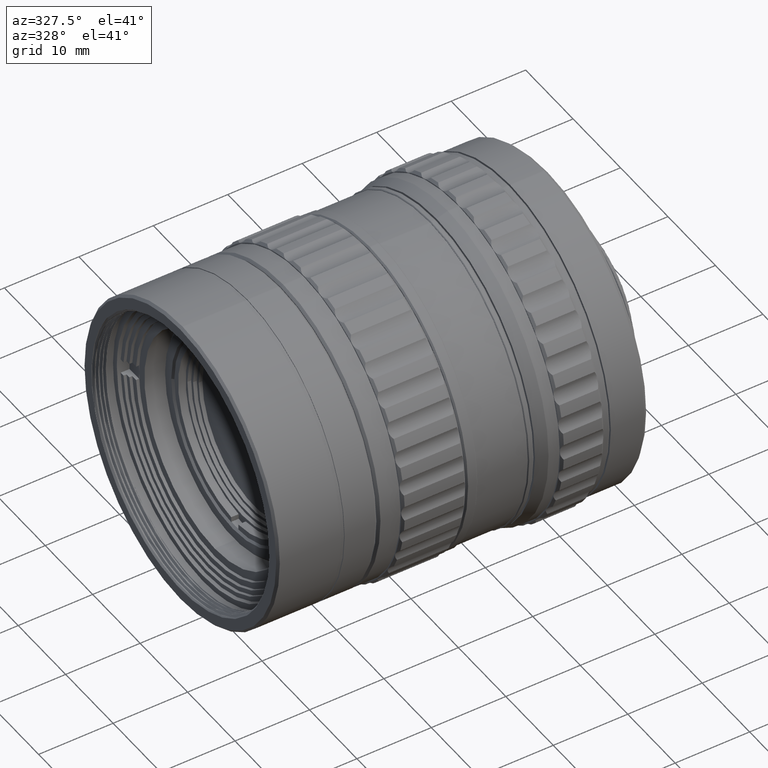
[diagram: clean part render]
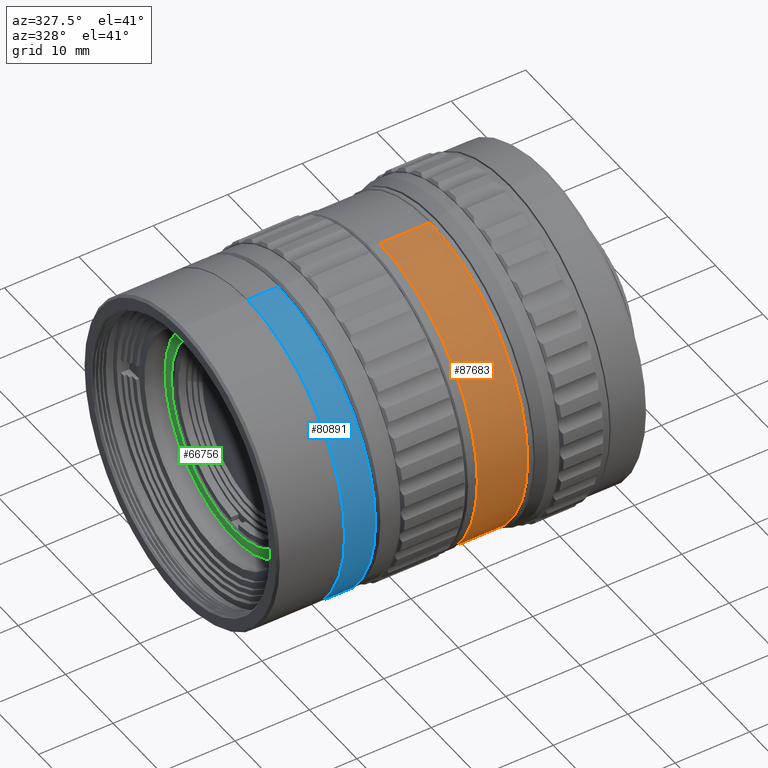
[diagram: same view with three faces highlighted in distinct colors, each labeled with its STEP entity id]
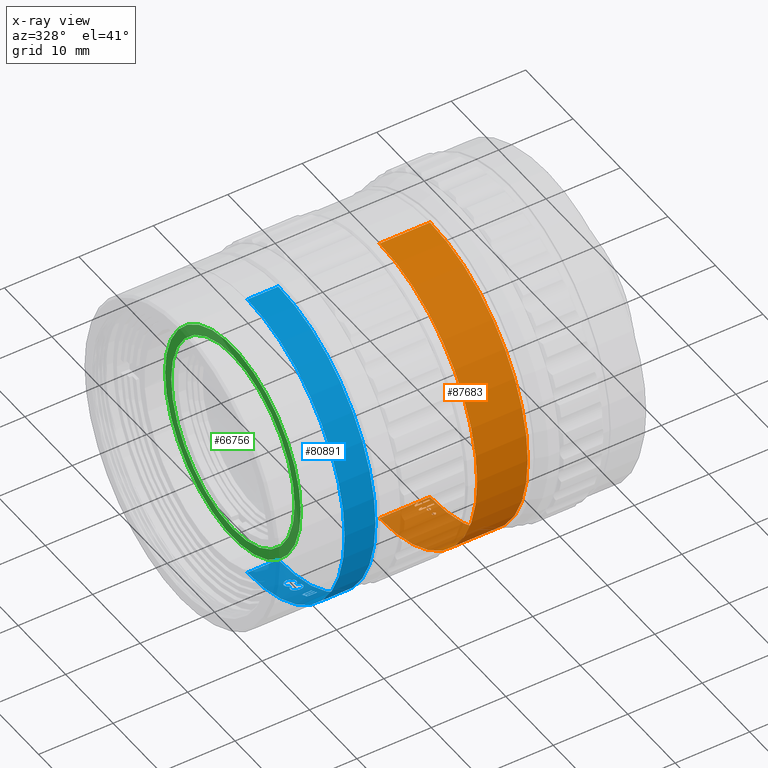
[diagram: x-ray of the same camera — body ghosted, the three highlighted faces saturated]
A machine part, auxiliary view with three faces highlighted in distinct colors.
The next image is the same camera in x-ray (body ghosted, the three faces saturated) — at least one of them is partly hidden behind the body in this view.
Their STEP definitions:

[orange] entity #87683 — the highlighted cylindrical surface (partial cylindrical patch) has radius 20.6 mm, axis along (1, 0, 0).
#61 = ORIENTED_EDGE ( 'NONE', *, *, #31539, .F. ) ;
#879 = CARTESIAN_POINT ( 'NONE',  ( 27.38000000000014467, -2.867230607665004261, -20.39948500924690222 ) ) ;
#974 = CARTESIAN_POINT ( 'NONE',  ( 26.97042549133185929, -1.196016050088671623, -20.56525092499361662 ) ) ;
#978 = EDGE_LOOP ( 'NONE', ( #81887, #77098 ) ) ;
#1744 = VECTOR ( 'NONE', #4397, 1000.000000000000000 ) ;
#2208 = DIRECTION ( 'NONE',  ( 0.000000000000000000, 0.000000000000000000, -1.000000000000000000 ) ) ;
#2530 = DIRECTION ( 'NONE',  ( -1.000000000000000000, -0.000000000000000000, -0.000000000000000000 ) ) ;
#2902 = CARTESIAN_POINT ( 'NONE',  ( 27.87999999999995282, -2.867230607664791986, -20.39948500924693775 ) ) ;
#2913 = FACE_BOUND ( 'NONE', #93346, .T. ) ;
#2920 = LINE ( 'NONE', #44195, #71099 ) ;
#4202 = CARTESIAN_POINT ( 'NONE',  ( 27.75964480788636735, -2.013433737687979175, -20.50141693491469397 ) ) ;
#4397 = DIRECTION ( 'NONE',  ( -1.000000000000000000, -0.000000000000000000, -0.000000000000000000 ) ) ;
#4553 = ORIENTED_EDGE ( 'NONE', *, *, #42507, .F. ) ;
#4742 = CARTESIAN_POINT ( 'NONE',  ( 27.88000000000289802, -1.730068221876666090, -20.52732676442056459 ) ) ;
#4762 = EDGE_CURVE ( 'NONE', #100325, #97927, #74004, .T. ) ;
#4770 = LINE ( 'NONE', #37441, #21481 ) ;
#5277 = CARTESIAN_POINT ( 'NONE',  ( 27.40722004664252509, -1.923569972659979088, -20.51004511358997462 ) ) ;
#5859 = CARTESIAN_POINT ( 'NONE',  ( 26.62999999999991374, -1.196016050087959970, -20.56525092499365925 ) ) ;
#6060 = EDGE_LOOP ( 'NONE', ( #47538, #8512 ) ) ;
#7034 = VERTEX_POINT ( 'NONE', #34359 ) ;
#7618 = DIRECTION ( 'NONE',  ( 1.000000000000000000, 0.000000000000000000, 0.000000000000000000 ) ) ;
#8103 = CIRCLE ( 'NONE', #93800, 20.60000000000049170 ) ;
#8201 = VERTEX_POINT ( 'NONE', #63039 ) ;
#8486 = DIRECTION ( 'NONE',  ( 0.000000000000000000, 0.000000000000000000, -1.000000000000000000 ) ) ;
#8512 = ORIENTED_EDGE ( 'NONE', *, *, #76299, .F. ) ;
#8932 = CARTESIAN_POINT ( 'NONE',  ( 27.56559601953591709, -3.109919967249379358, -20.36389937609238032 ) ) ;
#9267 = CARTESIAN_POINT ( 'NONE',  ( 28.62999999999967571, -0.3138197288554005482, -20.59760950153685855 ) ) ;
#10170 = CARTESIAN_POINT ( 'NONE',  ( 27.26829791545866044, -1.012352507113146283, -20.57510977859807255 ) ) ;
#10505 = VECTOR ( 'NONE', #69737, 1000.000000000000000 ) ;
#10916 = AXIS2_PLACEMENT_3D ( 'NONE', #75079, #7618, #42288 ) ;
#10945 = ORIENTED_EDGE ( 'NONE', *, *, #86848, .F. ) ;
#10959 = CARTESIAN_POINT ( 'NONE',  ( 27.37999999999936307, -2.802435687914634155, -20.40859219881786757 ) ) ;
#11913 = LINE ( 'NONE', #77937, #1744 ) ;
#12008 = EDGE_CURVE ( 'NONE', #70984, #100325, #2920, .T. ) ;
#13644 = VERTEX_POINT ( 'NONE', #54316 ) ;
#13814 = CARTESIAN_POINT ( 'NONE',  ( 25.53000000000000114, -0.4977120028756987780, -20.59398656798177640 ) ) ;
#14349 = CARTESIAN_POINT ( 'NONE',  ( 27.87999999999873069, -2.932025527407225773, -20.39037781967707019 ) ) ;
#14902 = LINE ( 'NONE', #64267, #75177 ) ;
#15770 = VECTOR ( 'NONE', #103962, 1000.000000000000000 ) ;
#19490 = CARTESIAN_POINT ( 'NONE',  ( 26.62999999999991374, -1.196016050087959970, -20.56525092499365925 ) ) ;
#19544 = FACE_OUTER_BOUND ( 'NONE', #72751, .T. ) ;
#19732 = VERTEX_POINT ( 'NONE', #89055 ) ;
#19829 = EDGE_CURVE ( 'NONE', #74398, #67321, #59873, .T. ) ;
#20380 = VERTEX_POINT ( 'NONE', #33843 ) ;
#21481 = VECTOR ( 'NONE', #69165, 1000.000000000000000 ) ;
#21641 = CARTESIAN_POINT ( 'NONE',  ( 27.88000000000183221, -1.795242136339606054, -20.52162531750180463 ) ) ;
#21759 = CARTESIAN_POINT ( 'NONE',  ( 26.63000000000011269, -0.4977120028706093491, -20.59398656798190075 ) ) ;
#21879 = CARTESIAN_POINT ( 'NONE',  ( 27.37999999999827949, -1.795242136339684436, -20.52162531750180463 ) ) ;
#22600 = VERTEX_POINT ( 'NONE', #31560 ) ;
#23768 = CARTESIAN_POINT ( 'NONE',  ( 26.92787230491757811, -0.1299024374312810481, -20.59959041720902562 ) ) ;
#24789 = B_SPLINE_CURVE_WITH_KNOTS ( 'NONE', 3,
 ( #76454, #10959, #43654, #57817, #52263, #40626, #99123, #32548, #73423, #2902 ),
 .UNSPECIFIED., .F., .F.,
 ( 4, 2, 2, 2, 4 ),
 ( 1.835032903172888128E-15, 0.0001935085962069073079, 0.0003870171924119795493, 0.0005805257886170517908, 0.0007740343848221240865 ),
 .UNSPECIFIED. ) ;
#27359 = CARTESIAN_POINT ( 'NONE',  ( 27.06971629937988411, -1.134809946718591256, -20.56881049653792459 ) ) ;
#27917 = DIRECTION ( 'NONE',  ( -1.000000000000000000, -0.000000000000000000, -0.000000000000000000 ) ) ;
#28941 = CARTESIAN_POINT ( 'NONE',  ( 27.16900710742087455, -1.073587952332154982, -20.57209682473495960 ) ) ;
#29095 = CARTESIAN_POINT ( 'NONE',  ( 26.82858153661478795, -1.073587952332154982, -20.57209682473495960 ) ) ;
#29995 = CIRCLE ( 'NONE', #74561, 20.60000000000049170 ) ;
#30276 = ORIENTED_EDGE ( 'NONE', *, *, #93043, .F. ) ;
#30425 = B_SPLINE_CURVE_WITH_KNOTS ( 'NONE', 3,
 ( #46021, #78272, #78798, #4202, #71282, #86841, #63229, #5277, #95943, #102378 ),
 .UNSPECIFIED., .F., .F.,
 ( 4, 2, 2, 2, 4 ),
 ( 1.909695979144924264E-15, 0.0001935085963343635403, 0.0003870171926668174210, 0.0005805257889992713289, 0.0007740343853317256705 ),
 .UNSPECIFIED. ) ;
#30434 = CARTESIAN_POINT ( 'NONE',  ( 27.75880520567685394, -1.576096809920223718, -20.53966871317484433 ) ) ;
#31539 = EDGE_CURVE ( 'NONE', #41095, #40223, #78800, .T. ) ;
#31560 = CARTESIAN_POINT ( 'NONE',  ( 28.92999999999996774, 0.000000000000000000, -20.60000000000049170 ) ) ;
#32548 = CARTESIAN_POINT ( 'NONE',  ( 27.85277995325906630, -2.739586912311844813, -20.41706971019821637 ) ) ;
#33597 = EDGE_CURVE ( 'NONE', #97927, #64964, #53615, .T. ) ;
#33843 = CARTESIAN_POINT ( 'NONE',  ( 26.63000000000011269, -1.379584247957886145, -20.55375263310344636 ) ) ;
#34359 = CARTESIAN_POINT ( 'NONE',  ( 27.38000000000014467, -2.867230607665004261, -20.39948500924690222 ) ) ;
#35037 = EDGE_CURVE ( 'NONE', #13644, #36921, #14902, .T. ) ;
#35595 = CYLINDRICAL_SURFACE ( 'NONE', #71389, 20.60000000000049170 ) ;
#35923 = EDGE_LOOP ( 'NONE', ( #40272, #74122, #76328, #4553, #61, #30276, #49907 ) ) ;
#36861 = VERTEX_POINT ( 'NONE', #21641 ) ;
#36921 = VERTEX_POINT ( 'NONE', #9267 ) ;
#37441 = CARTESIAN_POINT ( 'NONE',  ( 22.13000000000032230, 0.000000000000000000, -20.60000000000049170 ) ) ;
#37464 = DIRECTION ( 'NONE',  ( 1.000000000000000000, 0.000000000000000000, 0.000000000000000000 ) ) ;
#38482 = CARTESIAN_POINT ( 'NONE',  ( 27.56523905470510627, -1.550863439343211470, -20.54153895390560436 ) ) ;
#38787 = CARTESIAN_POINT ( 'NONE',  ( 26.63000000000079481, -0.3138197288554167019, -20.59760950153686210 ) ) ;
#39417 = B_SPLINE_CURVE_WITH_KNOTS ( 'NONE', 3,
 ( #40376, #73696, #104810, #39848 ),
 .UNSPECIFIED., .F., .F.,
 ( 4, 4 ),
 ( 0.000000000000000000, 1.000000000000000000 ),
 .UNSPECIFIED. ) ;
#39558 = ORIENTED_EDGE ( 'NONE', *, *, #100518, .T. ) ;
#39826 = EDGE_CURVE ( 'NONE', #7034, #8201, #24789, .T. ) ;
#39848 = CARTESIAN_POINT ( 'NONE',  ( 26.97042549133185929, -0.3138197288566914045, -20.59760950153684433 ) ) ;
#39941 = DIRECTION ( 'NONE',  ( 1.000000000000000000, 0.000000000000000000, 0.000000000000000000 ) ) ;
#40223 = VERTEX_POINT ( 'NONE', #69817 ) ;
#40272 = ORIENTED_EDGE ( 'NONE', *, *, #35037, .F. ) ;
#40376 = CARTESIAN_POINT ( 'NONE',  ( 27.26829791545807069, -0.1299024374312480190, -20.59959041720902562 ) ) ;
#40626 = CARTESIAN_POINT ( 'NONE',  ( 27.69440398049907870, -2.624134740789382025, -20.43217846595155152 ) ) ;
#41095 = VERTEX_POINT ( 'NONE', #21759 ) ;
#41300 = ORIENTED_EDGE ( 'NONE', *, *, #33597, .F. ) ;
#42091 = CARTESIAN_POINT ( 'NONE',  ( 22.13000000000032230, 2.522772406243608186E-15, 20.60000000000049170 ) ) ;
#42229 = CARTESIAN_POINT ( 'NONE',  ( 28.62999999999967571, 0.000000000000000000, 0.000000000000000000 ) ) ;
#42288 = DIRECTION ( 'NONE',  ( 0.000000000000000000, 0.000000000000000000, -1.000000000000000000 ) ) ;
#42507 = EDGE_CURVE ( 'NONE', #40223, #92927, #71572, .T. ) ;
#43526 = EDGE_CURVE ( 'NONE', #36861, #46580, #30425, .T. ) ;
#43567 = EDGE_CURVE ( 'NONE', #46580, #36861, #65080, .T. ) ;
#43654 = CARTESIAN_POINT ( 'NONE',  ( 27.40786403326750786, -2.739019959611179722, -20.41714430120212498 ) ) ;
#43664 = DIRECTION ( 'NONE',  ( 0.000000000000000000, 0.000000000000000000, -1.000000000000000000 ) ) ;
#44195 = CARTESIAN_POINT ( 'NONE',  ( 25.53000000000000114, -1.012352507109850031, -20.57510977859823598 ) ) ;
#45133 = ORIENTED_EDGE ( 'NONE', *, *, #70851, .F. ) ;
#45430 = AXIS2_PLACEMENT_3D ( 'NONE', #101444, #27917, #2208 ) ;
#46021 = CARTESIAN_POINT ( 'NONE',  ( 27.88000000000183221, -1.795242136339606054, -20.52162531750180463 ) ) ;
#46120 = DIRECTION ( 'NONE',  ( 1.000000000000000000, 0.000000000000000000, 0.000000000000000000 ) ) ;
#46580 = VERTEX_POINT ( 'NONE', #101747 ) ;
#46856 = CARTESIAN_POINT ( 'NONE',  ( 26.72929076830923378, -0.2525173201181075133, -20.59854348881761510 ) ) ;
#47060 = CARTESIAN_POINT ( 'NONE',  ( 27.85213596673919412, -2.995341676474727155, -20.38111724112371803 ) ) ;
#47291 = ORIENTED_EDGE ( 'NONE', *, *, #50842, .F. ) ;
#47538 = ORIENTED_EDGE ( 'NONE', *, *, #39826, .F. ) ;
#48245 = EDGE_CURVE ( 'NONE', #92927, #104934, #61662, .T. ) ;
#49121 = VECTOR ( 'NONE', #66484, 1000.000000000000000 ) ;
#49907 = ORIENTED_EDGE ( 'NONE', *, *, #55371, .F. ) ;
#50146 = FACE_BOUND ( 'NONE', #978, .T. ) ;
#50842 = EDGE_CURVE ( 'NONE', #20380, #103806, #51854, .T. ) ;
#51027 = CARTESIAN_POINT ( 'NONE',  ( 28.92999999999996774, 2.522772406243608186E-15, 20.60000000000049170 ) ) ;
#51243 = B_SPLINE_CURVE_WITH_KNOTS ( 'NONE', 3,
 ( #103959, #14349, #47060, #79834, #72303, #8932, #57242, #88401, #82447, #879 ),
 .UNSPECIFIED., .F., .F.,
 ( 4, 2, 2, 2, 4 ),
 ( 1.835567175687798832E-15, 0.0001935085961383277257, 0.0003870171922748198972, 0.0005805257884113120687, 0.0007740343845478042401 ),
 .UNSPECIFIED. ) ;
#51713 = DIRECTION ( 'NONE',  ( 0.000000000000000000, 0.000000000000000000, -1.000000000000000000 ) ) ;
#51734 = CARTESIAN_POINT ( 'NONE',  ( 22.13000000000032230, 0.000000000000000000, 0.000000000000000000 ) ) ;
#51854 = CIRCLE ( 'NONE', #81083, 20.60000000000049170 ) ;
#52183 = EDGE_CURVE ( 'NONE', #104934, #13644, #39417, .T. ) ;
#52225 = CARTESIAN_POINT ( 'NONE',  ( 26.72929076830883943, -1.134809946718591256, -20.56881049653792459 ) ) ;
#52263 = CARTESIAN_POINT ( 'NONE',  ( 27.56523905476483449, -2.624229711554227684, -20.43216626849214279 ) ) ;
#52607 = CARTESIAN_POINT ( 'NONE',  ( 26.63000000000011269, 0.000000000000000000, 0.000000000000000000 ) ) ;
#53567 = CARTESIAN_POINT ( 'NONE',  ( 27.85277995332578271, -1.666852830680330744, -20.53250285868888270 ) ) ;
#53615 = LINE ( 'NONE', #86352, #73355 ) ;
#54316 = CARTESIAN_POINT ( 'NONE',  ( 26.97042549133185929, -0.3138197288566914045, -20.59760950153684433 ) ) ;
#55169 = CARTESIAN_POINT ( 'NONE',  ( 27.40786403319666675, -1.666282750236399712, -20.53254766344240778 ) ) ;
#55371 = EDGE_CURVE ( 'NONE', #36921, #19732, #29995, .T. ) ;
#57242 = CARTESIAN_POINT ( 'NONE',  ( 27.50119479451292293, -3.084817979248099640, -20.36776791983136548 ) ) ;
#57817 = CARTESIAN_POINT ( 'NONE',  ( 27.50035519220612557, -2.650085489704928854, -20.42887805662645917 ) ) ;
#59873 = LINE ( 'NONE', #93145, #49121 ) ;
#60104 = CARTESIAN_POINT ( 'NONE',  ( 26.97042549133185929, -1.196016050088671623, -20.56525092499361662 ) ) ;
#60168 = ORIENTED_EDGE ( 'NONE', *, *, #82718, .F. ) ;
#60325 = FACE_BOUND ( 'NONE', #6060, .T. ) ;
#61136 = CARTESIAN_POINT ( 'NONE',  ( 25.52999999999999758, -0.1299024374310214225, -20.59959041720902562 ) ) ;
#61662 = LINE ( 'NONE', #61136, #10505 ) ;
#62669 = LINE ( 'NONE', #13814, #15770 ) ;
#62918 = B_SPLINE_CURVE_WITH_KNOTS ( 'NONE', 3,
 ( #19490, #52225, #29095, #84970 ),
 .UNSPECIFIED., .F., .F.,
 ( 4, 4 ),
 ( 0.000000000000000000, 1.000000000000000000 ),
 .UNSPECIFIED. ) ;
#63039 = CARTESIAN_POINT ( 'NONE',  ( 27.87999999999995282, -2.867230607664791986, -20.39948500924693775 ) ) ;
#63229 = CARTESIAN_POINT ( 'NONE',  ( 27.50119479439473480, -2.014191684048280528, -20.50134395255895470 ) ) ;
#63297 = ORIENTED_EDGE ( 'NONE', *, *, #4762, .F. ) ;
#64267 = CARTESIAN_POINT ( 'NONE',  ( 25.53000000000000114, -0.3138197288592731726, -20.59760950153680170 ) ) ;
#64964 = VERTEX_POINT ( 'NONE', #101147 ) ;
#65080 = B_SPLINE_CURVE_WITH_KNOTS ( 'NONE', 3,
 ( #21879, #102906, #55169, #79863, #38482, #103986, #30434, #53567, #4742, #87905 ),
 .UNSPECIFIED., .F., .F.,
 ( 4, 2, 2, 2, 4 ),
 ( 1.715055575780972211E-15, 0.0001935085963972543136, 0.0003870171927927935820, 0.0005805257891883328775, 0.0007740343855838721730 ),
 .UNSPECIFIED. ) ;
#65515 = CARTESIAN_POINT ( 'NONE',  ( 28.62999999999967571, -1.379584247957886145, -20.55375263310344636 ) ) ;
#66484 = DIRECTION ( 'NONE',  ( 1.000000000000000000, 0.000000000000000000, 0.000000000000000000 ) ) ;
#66636 = EDGE_CURVE ( 'NONE', #67321, #22600, #94861, .T. ) ;
#67313 = DIRECTION ( 'NONE',  ( -1.000000000000000000, -0.000000000000000000, -0.000000000000000000 ) ) ;
#67321 = VERTEX_POINT ( 'NONE', #51027 ) ;
#68356 = CARTESIAN_POINT ( 'NONE',  ( 22.13000000000032230, 0.000000000000000000, 0.000000000000000000 ) ) ;
#69165 = DIRECTION ( 'NONE',  ( 1.000000000000000000, 0.000000000000000000, 0.000000000000000000 ) ) ;
#69737 = DIRECTION ( 'NONE',  ( 1.000000000000000000, 0.000000000000000000, 0.000000000000000000 ) ) ;
#69778 = DIRECTION ( 'NONE',  ( 0.000000000000000000, 0.000000000000000000, -1.000000000000000000 ) ) ;
#69817 = CARTESIAN_POINT ( 'NONE',  ( 26.63000000000079481, -0.3138197288554167019, -20.59760950153686210 ) ) ;
#70851 = EDGE_CURVE ( 'NONE', #97616, #20380, #11913, .T. ) ;
#70984 = VERTEX_POINT ( 'NONE', #80578 ) ;
#71075 = ORIENTED_EDGE ( 'NONE', *, *, #12008, .F. ) ;
#71099 = VECTOR ( 'NONE', #93599, 1000.000000000000000 ) ;
#71282 = CARTESIAN_POINT ( 'NONE',  ( 27.69476094526268284, -2.039366507966164033, -20.49880445900439696 ) ) ;
#71389 = AXIS2_PLACEMENT_3D ( 'NONE', #51734, #82913, #43664 ) ;
#71572 = B_SPLINE_CURVE_WITH_KNOTS ( 'NONE', 3,
 ( #38787, #46856, #71596, #23768 ),
 .UNSPECIFIED., .F., .F.,
 ( 4, 4 ),
 ( 0.000000000000000000, 1.000000000000000000 ),
 .UNSPECIFIED. ) ;
#71596 = CARTESIAN_POINT ( 'NONE',  ( 26.82858153661518585, -0.1912107417783401042, -20.59920380281484498 ) ) ;
#72303 = CARTESIAN_POINT ( 'NONE',  ( 27.69476094520059561, -3.109825313790612444, -20.36391383108903241 ) ) ;
#72751 = EDGE_LOOP ( 'NONE', ( #84540, #10945, #39558, #73164 ) ) ;
#73164 = ORIENTED_EDGE ( 'NONE', *, *, #66636, .F. ) ;
#73355 = VECTOR ( 'NONE', #37464, 1000.000000000000000 ) ;
#73423 = CARTESIAN_POINT ( 'NONE',  ( 27.88000000000089074, -2.802444594412143886, -20.40859094697341547 ) ) ;
#73677 = AXIS2_PLACEMENT_3D ( 'NONE', #103858, #39941, #95821 ) ;
#73696 = CARTESIAN_POINT ( 'NONE',  ( 27.16900710742125469, -0.1912107417783523167, -20.59920380281484498 ) ) ;
#74004 = B_SPLINE_CURVE_WITH_KNOTS ( 'NONE', 3,
 ( #101950, #28941, #27359, #60104 ),
 .UNSPECIFIED., .F., .F.,
 ( 4, 4 ),
 ( 0.000000000000000000, 1.000000000000000000 ),
 .UNSPECIFIED. ) ;
#74122 = ORIENTED_EDGE ( 'NONE', *, *, #52183, .F. ) ;
#74398 = VERTEX_POINT ( 'NONE', #42091 ) ;
#74561 = AXIS2_PLACEMENT_3D ( 'NONE', #42229, #2530, #8486 ) ;
#75079 = CARTESIAN_POINT ( 'NONE',  ( 28.92999999999996774, 0.000000000000000000, 0.000000000000000000 ) ) ;
#75177 = VECTOR ( 'NONE', #96995, 1000.000000000000000 ) ;
#76299 = EDGE_CURVE ( 'NONE', #8201, #7034, #51243, .T. ) ;
#76328 = ORIENTED_EDGE ( 'NONE', *, *, #48245, .F. ) ;
#76454 = CARTESIAN_POINT ( 'NONE',  ( 27.38000000000014467, -2.867230607665004261, -20.39948500924690222 ) ) ;
#76989 = FACE_BOUND ( 'NONE', #35923, .T. ) ;
#77098 = ORIENTED_EDGE ( 'NONE', *, *, #43526, .F. ) ;
#77937 = CARTESIAN_POINT ( 'NONE',  ( 25.53000000000000114, -1.379584247957327925, -20.55375263310348544 ) ) ;
#78272 = CARTESIAN_POINT ( 'NONE',  ( 27.88000000000158707, -1.860425010621268749, -20.51592308677358645 ) ) ;
#78798 = CARTESIAN_POINT ( 'NONE',  ( 27.85213596681019510, -1.924139173470097441, -20.50999025344441762 ) ) ;
#78800 = CIRCLE ( 'NONE', #73677, 20.60000000000049170 ) ;
#79834 = CARTESIAN_POINT ( 'NONE',  ( 27.75964480776883647, -3.084064893600905410, -20.36788048588549316 ) ) ;
#79863 = CARTESIAN_POINT ( 'NONE',  ( 27.50035519209084711, -1.576855915552571208, -20.53960898305652449 ) ) ;
#80578 = CARTESIAN_POINT ( 'NONE',  ( 26.92787230491757811, -1.012352507112899147, -20.57510977859808676 ) ) ;
#81083 = AXIS2_PLACEMENT_3D ( 'NONE', #52607, #46120, #69778 ) ;
#81426 = CIRCLE ( 'NONE', #45430, 20.60000000000049170 ) ;
#81887 = ORIENTED_EDGE ( 'NONE', *, *, #43567, .F. ) ;
#82447 = CARTESIAN_POINT ( 'NONE',  ( 27.38000000000132417, -2.932016620911150451, -20.39037907152132334 ) ) ;
#82718 = EDGE_CURVE ( 'NONE', #103806, #70984, #62918, .T. ) ;
#82913 = DIRECTION ( 'NONE',  ( 1.000000000000000000, 0.000000000000000000, 0.000000000000000000 ) ) ;
#83124 = EDGE_CURVE ( 'NONE', #64964, #97616, #81426, .T. ) ;
#83633 = CARTESIAN_POINT ( 'NONE',  ( 26.92787230491757811, -0.1299024374312810481, -20.59959041720902562 ) ) ;
#84540 = ORIENTED_EDGE ( 'NONE', *, *, #19829, .F. ) ;
#84970 = CARTESIAN_POINT ( 'NONE',  ( 26.92787230491757811, -1.012352507112899147, -20.57510977859808676 ) ) ;
#86352 = CARTESIAN_POINT ( 'NONE',  ( 25.53000000000000114, -1.196016050090738192, -20.56525092499349583 ) ) ;
#86841 = CARTESIAN_POINT ( 'NONE',  ( 27.56559601948682570, -2.039461788425270594, -20.49879497960467845 ) ) ;
#86848 = EDGE_CURVE ( 'NONE', #92717, #74398, #8103, .T. ) ;
#87683 = ADVANCED_FACE ( 'NONE', ( #19544, #60325, #50146, #2913, #76989 ), #35595, .T. ) ;
#87905 = CARTESIAN_POINT ( 'NONE',  ( 27.88000000000183221, -1.795242136339606054, -20.52162531750180463 ) ) ;
#88401 = CARTESIAN_POINT ( 'NONE',  ( 27.40722004670835332, -2.994776128670581627, -20.38120182767319122 ) ) ;
#89055 = CARTESIAN_POINT ( 'NONE',  ( 28.62999999999967571, -0.4977120028706093491, -20.59398656798190075 ) ) ;
#92717 = VERTEX_POINT ( 'NONE', #104604 ) ;
#92815 = CARTESIAN_POINT ( 'NONE',  ( 27.26829791545807069, -0.1299024374312480190, -20.59959041720902562 ) ) ;
#92927 = VERTEX_POINT ( 'NONE', #83633 ) ;
#93043 = EDGE_CURVE ( 'NONE', #19732, #41095, #62669, .T. ) ;
#93145 = CARTESIAN_POINT ( 'NONE',  ( 22.13000000000032230, 2.522772406243608186E-15, 20.60000000000049170 ) ) ;
#93346 = EDGE_LOOP ( 'NONE', ( #41300, #63297, #71075, #60168, #47291, #45133, #105724 ) ) ;
#93599 = DIRECTION ( 'NONE',  ( 1.000000000000000000, 0.000000000000000000, 0.000000000000000000 ) ) ;
#93800 = AXIS2_PLACEMENT_3D ( 'NONE', #68356, #67313, #51713 ) ;
#94861 = CIRCLE ( 'NONE', #10916, 20.60000000000049170 ) ;
#95821 = DIRECTION ( 'NONE',  ( 0.000000000000000000, 0.000000000000000000, -1.000000000000000000 ) ) ;
#95943 = CARTESIAN_POINT ( 'NONE',  ( 27.37999999999820488, -1.860416050797026877, -20.51592387058354916 ) ) ;
#96995 = DIRECTION ( 'NONE',  ( 1.000000000000000000, 0.000000000000000000, 0.000000000000000000 ) ) ;
#97616 = VERTEX_POINT ( 'NONE', #65515 ) ;
#97927 = VERTEX_POINT ( 'NONE', #974 ) ;
#99123 = CARTESIAN_POINT ( 'NONE',  ( 27.75880520556509268, -2.649330552531434790, -20.42897744931515192 ) ) ;
#100325 = VERTEX_POINT ( 'NONE', #10170 ) ;
#100518 = EDGE_CURVE ( 'NONE', #92717, #22600, #4770, .T. ) ;
#101147 = CARTESIAN_POINT ( 'NONE',  ( 28.62999999999967571, -1.196016050087638893, -20.56525092499367346 ) ) ;
#101444 = CARTESIAN_POINT ( 'NONE',  ( 28.62999999999967571, 0.000000000000000000, 0.000000000000000000 ) ) ;
#101747 = CARTESIAN_POINT ( 'NONE',  ( 27.37999999999827949, -1.795242136339684436, -20.52162531750180463 ) ) ;
#101950 = CARTESIAN_POINT ( 'NONE',  ( 27.26829791545866044, -1.012352507113146283, -20.57510977859807255 ) ) ;
#102378 = CARTESIAN_POINT ( 'NONE',  ( 27.37999999999827949, -1.795242136339684436, -20.52162531750180463 ) ) ;
#102906 = CARTESIAN_POINT ( 'NONE',  ( 27.37999999999729894, -1.730059262051103719, -20.52732754823060901 ) ) ;
#103806 = VERTEX_POINT ( 'NONE', #5859 ) ;
#103858 = CARTESIAN_POINT ( 'NONE',  ( 26.63000000000011269, 0.000000000000000000, 0.000000000000000000 ) ) ;
#103959 = CARTESIAN_POINT ( 'NONE',  ( 27.87999999999995282, -2.867230607664791986, -20.39948500924693775 ) ) ;
#103962 = DIRECTION ( 'NONE',  ( -1.000000000000000000, -0.000000000000000000, -0.000000000000000000 ) ) ;
#103986 = CARTESIAN_POINT ( 'NONE',  ( 27.69440398054503660, -1.550767960210912122, -20.54154616225118346 ) ) ;
#104604 = CARTESIAN_POINT ( 'NONE',  ( 22.13000000000032230, 0.000000000000000000, -20.60000000000049170 ) ) ;
#104810 = CARTESIAN_POINT ( 'NONE',  ( 27.06971629937883606, -0.2525173201181197258, -20.59854348881761510 ) ) ;
#104934 = VERTEX_POINT ( 'NONE', #92815 ) ;
#105724 = ORIENTED_EDGE ( 'NONE', *, *, #83124, .F. ) ;

[blue] entity #80891 — the highlighted cylindrical surface (partial cylindrical patch) has radius 20.5 mm, axis along (1, 0, 0).
#90 = CARTESIAN_POINT ( 'NONE',  ( 4.400000000000108713, 2.510525938251969563E-15, 20.49999999999914735 ) ) ;
#174 = ORIENTED_EDGE ( 'NONE', *, *, #34615, .F. ) ;
#713 = DIRECTION ( 'NONE',  ( 0.000000000000000000, -0.8660254037843815311, -0.5000000000000989209 ) ) ;
#1427 = FACE_OUTER_BOUND ( 'NONE', #52172, .T. ) ;
#1695 = EDGE_CURVE ( 'NONE', #54591, #1888, #19715, .T. ) ;
#1888 = VERTEX_POINT ( 'NONE', #50022 ) ;
#2503 = ORIENTED_EDGE ( 'NONE', *, *, #31988, .F. ) ;
#2968 = CARTESIAN_POINT ( 'NONE',  ( 6.708510661124998720, 0.000000000000000000, 0.000000000000000000 ) ) ;
#3707 = EDGE_CURVE ( 'NONE', #83727, #63909, #12786, .T. ) ;
#3718 = CARTESIAN_POINT ( 'NONE',  ( 6.538297915459001075, -8.122377307913227540, -18.82224712588433846 ) ) ;
#3878 = CIRCLE ( 'NONE', #103302, 20.49999999999914735 ) ;
#4300 = CARTESIAN_POINT ( 'NONE',  ( 6.708510661125007601, -8.722812316747475592, -18.55161840074238455 ) ) ;
#4661 = EDGE_CURVE ( 'NONE', #25605, #62974, #95855, .T. ) ;
#4751 = CARTESIAN_POINT ( 'NONE',  ( 6.722695056598183783, -8.851746120591577949, -18.49045896173767289 ) ) ;
#5426 = CARTESIAN_POINT ( 'NONE',  ( 6.623404288291361297, -8.663174959188511437, -18.57957168841784323 ) ) ;
#5479 = CARTESIAN_POINT ( 'NONE',  ( 7.027093958107450078, -3.861611139596935693, -20.13300671590442903 ) ) ;
#6030 = DIRECTION ( 'NONE',  ( 1.000000000000000000, 0.000000000000000000, 0.000000000000000000 ) ) ;
#6612 = CARTESIAN_POINT ( 'NONE',  ( 7.900000000000000355, -8.122377307913227540, -18.82224712588433846 ) ) ;
#6651 = CARTESIAN_POINT ( 'NONE',  ( 6.552482310929875986, -8.573534599849866211, -18.62110600806901672 ) ) ;
#6704 = B_SPLINE_CURVE_WITH_KNOTS ( 'NONE', 3,
 ( #43289, #57844, #42760, #83058 ),
 .UNSPECIFIED., .F., .F.,
 ( 4, 4 ),
 ( 0.000000000000000000, 1.000000000000000000 ),
 .UNSPECIFIED. ) ;
#7189 = EDGE_CURVE ( 'NONE', #78039, #11662, #46150, .T. ) ;
#7439 = CARTESIAN_POINT ( 'NONE',  ( 6.751063847542108753, -8.543599129386848290, -18.63483066508266361 ) ) ;
#8090 = VERTEX_POINT ( 'NONE', #28132 ) ;
#8150 = DIRECTION ( 'NONE',  ( 0.000000000000000000, 0.000000000000000000, 1.000000000000000000 ) ) ;
#8190 = CARTESIAN_POINT ( 'NONE',  ( 6.751063847542174479, -8.333515097792112414, -18.72972306562048317 ) ) ;
#8278 = CARTESIAN_POINT ( 'NONE',  ( 6.793617033958423868, -8.573523577442646371, -18.62108196284523132 ) ) ;
#8484 = VERTEX_POINT ( 'NONE', #47834 ) ;
#8787 = AXIS2_PLACEMENT_3D ( 'NONE', #48904, #39754, #8150 ) ;
#8819 = CARTESIAN_POINT ( 'NONE',  ( 6.736879452071691254, -8.363603005876518282, -18.71633589297496059 ) ) ;
#8889 = VERTEX_POINT ( 'NONE', #94695 ) ;
#8917 = EDGE_CURVE ( 'NONE', #23651, #62639, #101797, .T. ) ;
#9065 = ORIENTED_EDGE ( 'NONE', *, *, #93865, .F. ) ;
#9082 = B_SPLINE_CURVE_WITH_KNOTS ( 'NONE', 3,
 ( #10502, #44256, #36182, #101705 ),
 .UNSPECIFIED., .F., .F.,
 ( 4, 4 ),
 ( 0.000000000000000000, 1.000000000000000000 ),
 .UNSPECIFIED. ) ;
#9092 = CARTESIAN_POINT ( 'NONE',  ( 7.900000000000000355, -8.752602859225401488, -18.53758191320120474 ) ) ;
#9218 = VECTOR ( 'NONE', #46736, 1000.000000000000000 ) ;
#9331 = DIRECTION ( 'NONE',  ( 0.000000000000000000, -7.105427357601001859E-15, -1.000000000000000000 ) ) ;
#9381 = CARTESIAN_POINT ( 'NONE',  ( 6.580851101875506259, -8.333515097791622139, -18.72972306562069633 ) ) ;
#9785 = CARTESIAN_POINT ( 'NONE',  ( 6.751063847542174479, -8.333515097792112414, -18.72972306562048317 ) ) ;
#9910 = CARTESIAN_POINT ( 'NONE',  ( 6.566666706404851617, -8.363603005876520058, -18.71633589297495703 ) ) ;
#10417 = VERTEX_POINT ( 'NONE', #24752 ) ;
#10502 = CARTESIAN_POINT ( 'NONE',  ( 6.580851101875295761, -9.108305484728344226, -18.36542325123035013 ) ) ;
#11490 = LINE ( 'NONE', #87134, #53593 ) ;
#11662 = VERTEX_POINT ( 'NONE', #14283 ) ;
#12430 = ORIENTED_EDGE ( 'NONE', *, *, #61455, .F. ) ;
#12786 = B_SPLINE_CURVE_WITH_KNOTS ( 'NONE', 3,
 ( #54059, #20743, #87321, #53509 ),
 .UNSPECIFIED., .F., .F.,
 ( 4, 4 ),
 ( 0.000000000000000000, 1.000000000000000000 ),
 .UNSPECIFIED. ) ;
#13469 = CARTESIAN_POINT ( 'NONE',  ( 6.708510661125007601, -8.722812316747475592, -18.55161840074238455 ) ) ;
#14016 = CARTESIAN_POINT ( 'NONE',  ( 2.125000000000000444, -8.273296377790321898, -18.75640069536814281 ) ) ;
#14283 = CARTESIAN_POINT ( 'NONE',  ( 6.878723406791673156, -9.226127355694575982, -18.30651725524189644 ) ) ;
#14592 = CARTESIAN_POINT ( 'NONE',  ( 6.658168002541627217, -5.224186516944116399, -19.82334508973739062 ) ) ;
#15443 = CARTESIAN_POINT ( 'NONE',  ( 4.400000000000108713, 0.000000000000000000, 0.000000000000000000 ) ) ;
#15633 = CARTESIAN_POINT ( 'NONE',  ( 7.549802232822364623, -3.919721401681851791, -20.12204815980344819 ) ) ;
#16446 = CARTESIAN_POINT ( 'NONE',  ( 6.580851101875409448, -8.812116063790785603, -18.50936548016288441 ) ) ;
#16507 = CARTESIAN_POINT ( 'NONE',  ( 6.708510661124917007, -8.423681698090691228, -18.68934420061915702 ) ) ;
#16871 = CARTESIAN_POINT ( 'NONE',  ( 6.751063847542174479, -8.333515097792112414, -18.72972306562048317 ) ) ;
#16892 = CARTESIAN_POINT ( 'NONE',  ( 6.538297915458930909, -8.423681698087490233, -18.68934420062059942 ) ) ;
#17357 = CARTESIAN_POINT ( 'NONE',  ( 6.708510661124998720, 0.000000000000000000, 0.000000000000000000 ) ) ;
#17518 = CARTESIAN_POINT ( 'NONE',  ( 4.400000000000108713, 0.000000000000000000, 0.000000000000000000 ) ) ;
#17676 = CARTESIAN_POINT ( 'NONE',  ( 8.549997245433745618, 2.510501339617999456E-15, 20.49999724427759773 ) ) ;
#17935 = CARTESIAN_POINT ( 'NONE',  ( 6.708510661125007601, -8.722812316747475592, -18.55161840074238455 ) ) ;
#18117 = B_SPLINE_CURVE_WITH_KNOTS ( 'NONE', 3,
 ( #35971, #46172, #95029, #87520 ),
 .UNSPECIFIED., .F., .F.,
 ( 4, 4 ),
 ( 0.000000000000000000, 1.000000000000000000 ),
 .UNSPECIFIED. ) ;
#18280 = DIRECTION ( 'NONE',  ( -1.000000000000000000, -0.000000000000000000, -0.000000000000000000 ) ) ;
#18942 = ORIENTED_EDGE ( 'NONE', *, *, #3707, .F. ) ;
#19083 = EDGE_CURVE ( 'NONE', #41792, #8484, #67163, .T. ) ;
#19628 = VERTEX_POINT ( 'NONE', #4300 ) ;
#19653 = CARTESIAN_POINT ( 'NONE',  ( 6.538297915459168941, -8.543599129385698987, -18.63483066508319652 ) ) ;
#19715 = CIRCLE ( 'NONE', #79732, 20.49999662458865046 ) ;
#19887 = DIRECTION ( 'NONE',  ( 0.000000000000000000, -5.329070518200751394E-15, -1.000000000000000000 ) ) ;
#20122 = CARTESIAN_POINT ( 'NONE',  ( 6.878723406791788619, -9.078791085652071047, -18.38003134989299880 ) ) ;
#20743 = CARTESIAN_POINT ( 'NONE',  ( 6.821985824902892404, -8.583494710268515959, -18.61649105118139857 ) ) ;
#20901 = B_SPLINE_CURVE_WITH_KNOTS ( 'NONE', 3,
 ( #50278, #28611, #61373, #57821 ),
 .UNSPECIFIED., .F., .F.,
 ( 4, 4 ),
 ( 0.000000000000000000, 1.000000000000000000 ),
 .UNSPECIFIED. ) ;
#21461 = CARTESIAN_POINT ( 'NONE',  ( 6.538297915459001075, 0.000000000000000000, 0.000000000000000000 ) ) ;
#21558 = CARTESIAN_POINT ( 'NONE',  ( 7.374047872436412909, -3.861860729116391333, -20.13295884178529249 ) ) ;
#21793 = VERTEX_POINT ( 'NONE', #3718 ) ;
#21847 = ORIENTED_EDGE ( 'NONE', *, *, #100705, .F. ) ;
#21918 = CARTESIAN_POINT ( 'NONE',  ( 8.549996624598904305, -1.072230587556000064E-13, 1.555177192378999923E-13 ) ) ;
#21935 = VERTEX_POINT ( 'NONE', #89541 ) ;
#21978 = AXIS2_PLACEMENT_3D ( 'NONE', #21461, #27910, #53149 ) ;
#22057 = LINE ( 'NONE', #14016, #9218 ) ;
#22081 = CARTESIAN_POINT ( 'NONE',  ( 6.574556306248870108, -4.124939662218348957, -20.08098262249405508 ) ) ;
#22719 = CARTESIAN_POINT ( 'NONE',  ( 6.566666706403665899, -8.603436998827609372, -18.60730921723428111 ) ) ;
#22954 = VERTEX_POINT ( 'NONE', #55653 ) ;
#22981 = AXIS2_PLACEMENT_3D ( 'NONE', #2968, #100639, #78098 ) ;
#23630 = ORIENTED_EDGE ( 'NONE', *, *, #37899, .F. ) ;
#23651 = VERTEX_POINT ( 'NONE', #71520 ) ;
#23653 = ORIENTED_EDGE ( 'NONE', *, *, #8917, .F. ) ;
#23739 = B_SPLINE_CURVE_WITH_KNOTS ( 'NONE', 3,
 ( #23777, #22719, #6651, #72656 ),
 .UNSPECIFIED., .F., .F.,
 ( 4, 4 ),
 ( 0.000000000000000000, 1.000000000000000000 ),
 .UNSPECIFIED. ) ;
#23777 = CARTESIAN_POINT ( 'NONE',  ( 6.580851101875295761, -8.633305979002981800, -18.59344045282842117 ) ) ;
#23829 = EDGE_CURVE ( 'NONE', #73508, #10417, #101297, .T. ) ;
#24491 = CARTESIAN_POINT ( 'NONE',  ( 6.836170220375498374, -8.273296377789675304, -18.75640069536842702 ) ) ;
#24733 = CARTESIAN_POINT ( 'NONE',  ( 6.821985824903439521, -8.772451935921571575, -18.52820033170707958 ) ) ;
#24752 = CARTESIAN_POINT ( 'NONE',  ( 6.538297915458930909, -8.423681698087490233, -18.68934420062059942 ) ) ;
#24995 = CARTESIAN_POINT ( 'NONE',  ( 6.566666706404848952, -8.841849997935408823, -18.49520946390201459 ) ) ;
#25528 = VERTEX_POINT ( 'NONE', #9092 ) ;
#25605 = VERTEX_POINT ( 'NONE', #49838 ) ;
#25639 = DIRECTION ( 'NONE',  ( -1.000000000000000000, -0.000000000000000000, -0.000000000000000000 ) ) ;
#25812 = CARTESIAN_POINT ( 'NONE',  ( 7.900000000000000355, -9.226127355694245580, -18.30651725524205631 ) ) ;
#25908 = CARTESIAN_POINT ( 'NONE',  ( 6.765248243013341600, -8.553577624321173190, -18.63025577721994708 ) ) ;
#25942 = CARTESIAN_POINT ( 'NONE',  ( 6.580851101875409448, -8.812116063790785603, -18.50936548016288441 ) ) ;
#26404 = EDGE_CURVE ( 'NONE', #93157, #39133, #38370, .T. ) ;
#27286 = ORIENTED_EDGE ( 'NONE', *, *, #7189, .F. ) ;
#27663 = VERTEX_POINT ( 'NONE', #46053 ) ;
#27910 = DIRECTION ( 'NONE',  ( 1.000000000000000000, -0.000000000000000000, -0.000000000000000000 ) ) ;
#28132 = CARTESIAN_POINT ( 'NONE',  ( 6.751063847542108753, -8.543599129386848290, -18.63483066508266361 ) ) ;
#28160 = CARTESIAN_POINT ( 'NONE',  ( 6.850354615846498518, -9.068949015449625506, -18.38489282686859738 ) ) ;
#28254 = CARTESIAN_POINT ( 'NONE',  ( 7.929444069247075788, -6.321827404392688088, -19.50160558329045202 ) ) ;
#28480 = ORIENTED_EDGE ( 'NONE', *, *, #4661, .F. ) ;
#28611 = CARTESIAN_POINT ( 'NONE',  ( 6.609219892820311415, -8.313456493605766440, -18.73864784684878870 ) ) ;
#29062 = B_SPLINE_CURVE_WITH_KNOTS ( 'NONE', 3,
 ( #66226, #25908, #41492, #8278 ),
 .UNSPECIFIED., .F., .F.,
 ( 4, 4 ),
 ( 0.000000000000000000, 1.000000000000000000 ),
 .UNSPECIFIED. ) ;
#29549 = VERTEX_POINT ( 'NONE', #91563 ) ;
#29662 = CARTESIAN_POINT ( 'NONE',  ( 6.708510661124948982, -8.960499795277533153, -18.43798913707230369 ) ) ;
#29956 = B_SPLINE_CURVE_WITH_KNOTS ( 'NONE', 3,
 ( #25942, #42061, #74852, #17935 ),
 .UNSPECIFIED., .F., .F.,
 ( 4, 4 ),
 ( 0.000000000000000000, 1.000000000000000000 ),
 .UNSPECIFIED. ) ;
#30115 = CARTESIAN_POINT ( 'NONE',  ( 7.929698924970423946, -4.276230311429207731, -20.04974066231718410 ) ) ;
#30352 = EDGE_LOOP ( 'NONE', ( #53181, #97491, #86903, #21847, #75425, #35358, #36665, #70548, #12430, #101756, #174, #48736, #95199, #52967, #27286, #52547, #47989, #66536, #2503, #33216, #23653, #95383, #93873, #28480, #83585, #55569, #72277, #18942, #57464, #66628, #57954, #23630, #89371, #41321, #9065 ) ) ;
#30375 = CARTESIAN_POINT ( 'NONE',  ( 6.658257315663130171, -5.387324378550258253, -19.77963253211636641 ) ) ;
#30602 = LINE ( 'NONE', #103631, #64175 ) ;
#30644 = CARTESIAN_POINT ( 'NONE',  ( 6.534183595649269982, -5.092734636807704440, -19.85797950900371944 ) ) ;
#31650 = CARTESIAN_POINT ( 'NONE',  ( 6.793617033958214257, -8.782370814698065686, -18.52349758747263664 ) ) ;
#31762 = VERTEX_POINT ( 'NONE', #88184 ) ;
#31988 = EDGE_CURVE ( 'NONE', #48817, #74840, #18117, .T. ) ;
#32102 = CARTESIAN_POINT ( 'NONE',  ( 6.751063847542108753, -9.019691992972559191, -18.40910525668946818 ) ) ;
#32197 = ORIENTED_EDGE ( 'NONE', *, *, #53261, .T. ) ;
#32720 = ORIENTED_EDGE ( 'NONE', *, *, #1695, .T. ) ;
#33216 = ORIENTED_EDGE ( 'NONE', *, *, #96113, .F. ) ;
#33751 = CARTESIAN_POINT ( 'NONE',  ( 6.538297915459168941, -9.019691992970233940, -18.40910525669060149 ) ) ;
#33806 = VERTEX_POINT ( 'NONE', #63797 ) ;
#34615 = EDGE_CURVE ( 'NONE', #100376, #22954, #42493, .T. ) ;
#35358 = ORIENTED_EDGE ( 'NONE', *, *, #23829, .F. ) ;
#35758 = CARTESIAN_POINT ( 'NONE',  ( 6.765248243013344265, -8.802204766603882291, -18.51408414549192472 ) ) ;
#35971 = CARTESIAN_POINT ( 'NONE',  ( 6.751063847542108753, -9.019691992972559191, -18.40910525668946818 ) ) ;
#36182 = CARTESIAN_POINT ( 'NONE',  ( 6.552482310929878651, -9.049264852307032925, -18.39461579189314477 ) ) ;
#36560 = EDGE_CURVE ( 'NONE', #10417, #29549, #63703, .T. ) ;
#36651 = EDGE_CURVE ( 'NONE', #25528, #25605, #66269, .T. ) ;
#36665 = ORIENTED_EDGE ( 'NONE', *, *, #47991, .F. ) ;
#36816 = CARTESIAN_POINT ( 'NONE',  ( 8.004139827106307337, -5.824210172893552695, -19.65588644968364207 ) ) ;
#36823 = VERTEX_POINT ( 'NONE', #59787 ) ;
#37355 = CARTESIAN_POINT ( 'NONE',  ( 6.534685348729932564, -5.517689354285526981, -19.74412663809263790 ) ) ;
#37756 = EDGE_CURVE ( 'NONE', #92156, #21793, #79840, .T. ) ;
#37899 = EDGE_CURVE ( 'NONE', #39133, #41792, #48080, .T. ) ;
#38370 = B_SPLINE_CURVE_WITH_KNOTS ( 'NONE', 3,
 ( #59127, #90803, #97785, #8190 ),
 .UNSPECIFIED., .F., .F.,
 ( 4, 4 ),
 ( 0.000000000000000000, 1.000000000000000000 ),
 .UNSPECIFIED. ) ;
#38419 = CARTESIAN_POINT ( 'NONE',  ( 7.587298334621170426, -5.305779026045103208, -19.80148249315553954 ) ) ;
#39020 = CARTESIAN_POINT ( 'NONE',  ( 6.736879452070652086, -8.831938672393409462, -18.49992814273062081 ) ) ;
#39133 = VERTEX_POINT ( 'NONE', #9785 ) ;
#39642 = CIRCLE ( 'NONE', #94525, 20.49999724427755510 ) ;
#39754 = DIRECTION ( 'NONE',  ( 1.000000000000000000, -0.000000000000000000, -0.000000000000000000 ) ) ;
#40262 = CARTESIAN_POINT ( 'NONE',  ( 6.751063847542174479, -8.812116063790783826, -18.50936548016288441 ) ) ;
#40656 = CARTESIAN_POINT ( 'NONE',  ( 6.736879452068860630, -8.523642153812321709, -18.64398043425460827 ) ) ;
#41084 = B_SPLINE_CURVE_WITH_KNOTS ( 'NONE', 3,
 ( #13469, #46175, #5426, #57944 ),
 .UNSPECIFIED., .F., .F.,
 ( 4, 4 ),
 ( 0.000000000000000000, 1.000000000000000000 ),
 .UNSPECIFIED. ) ;
#41321 = ORIENTED_EDGE ( 'NONE', *, *, #52626, .F. ) ;
#41453 = EDGE_CURVE ( 'NONE', #19628, #8889, #41084, .T. ) ;
#41492 = CARTESIAN_POINT ( 'NONE',  ( 6.779432638487129736, -8.563552444605049274, -18.62567287451446774 ) ) ;
#41747 = CARTESIAN_POINT ( 'NONE',  ( 6.708510661124948982, -8.960499795277533153, -18.43798913707230369 ) ) ;
#41792 = VERTEX_POINT ( 'NONE', #16507 ) ;
#42061 = CARTESIAN_POINT ( 'NONE',  ( 6.623404288294162612, -8.782382143802013985, -18.52352148968429901 ) ) ;
#42493 = CIRCLE ( 'NONE', #21978, 20.49999999999914735 ) ;
#42760 = CARTESIAN_POINT ( 'NONE',  ( 6.736879452069264751, -9.186900774626279187, -18.32624719236303434 ) ) ;
#42780 = VERTEX_POINT ( 'NONE', #60995 ) ;
#43289 = CARTESIAN_POINT ( 'NONE',  ( 6.878723406791673156, -9.226127355694575982, -18.30651725524189644 ) ) ;
#44087 = VERTEX_POINT ( 'NONE', #85908 ) ;
#44256 = CARTESIAN_POINT ( 'NONE',  ( 6.566666706403668563, -9.078802797278440195, -18.38005506702017300 ) ) ;
#45113 = CARTESIAN_POINT ( 'NONE',  ( 6.609219892820297204, -9.127973952426483351, -18.35566870270944406 ) ) ;
#45961 = CARTESIAN_POINT ( 'NONE',  ( 7.025952124689061939, -6.721987623912281329, -19.36659191494677046 ) ) ;
#46053 = CARTESIAN_POINT ( 'NONE',  ( 6.665957474708609887, -9.167263776435808253, -18.33606486826475290 ) ) ;
#46150 = LINE ( 'NONE', #46680, #48417 ) ;
#46172 = CARTESIAN_POINT ( 'NONE',  ( 6.765248243013344265, -9.029549603347014397, -18.40427543969811097 ) ) ;
#46175 = CARTESIAN_POINT ( 'NONE',  ( 6.665957474708726238, -8.693010520581880840, -18.56563095043152956 ) ) ;
#46680 = CARTESIAN_POINT ( 'NONE',  ( 2.125000000000000000, -9.226127355693394705, -18.30651725524248974 ) ) ;
#46736 = DIRECTION ( 'NONE',  ( -1.000000000000000000, -0.000000000000000000, -0.000000000000000000 ) ) ;
#46762 = CARTESIAN_POINT ( 'NONE',  ( 6.812701665379449878, -5.305779026044520563, -19.80148249315568165 ) ) ;
#47834 = CARTESIAN_POINT ( 'NONE',  ( 6.708510661124949870, -8.483684210468783959, -18.66218374727372620 ) ) ;
#47989 = ORIENTED_EDGE ( 'NONE', *, *, #62562, .F. ) ;
#47991 = EDGE_CURVE ( 'NONE', #8889, #73508, #23739, .T. ) ;
#48080 = B_SPLINE_CURVE_WITH_KNOTS ( 'NONE', 3,
 ( #16871, #8819, #100543, #74317 ),
 .UNSPECIFIED., .F., .F.,
 ( 4, 4 ),
 ( 0.000000000000000000, 1.000000000000000000 ),
 .UNSPECIFIED. ) ;
#48417 = VECTOR ( 'NONE', #78923, 1000.000000000000000 ) ;
#48481 = DIRECTION ( 'NONE',  ( 1.000000000000000000, 0.000000000000000000, 0.000000000000000000 ) ) ;
#48666 = EDGE_CURVE ( 'NONE', #1888, #73107, #39642, .T. ) ;
#48736 = ORIENTED_EDGE ( 'NONE', *, *, #51002, .F. ) ;
#48817 = VERTEX_POINT ( 'NONE', #77411 ) ;
#48904 = CARTESIAN_POINT ( 'NONE',  ( 6.538297915459001075, 0.000000000000000000, 0.000000000000000000 ) ) ;
#49528 = CARTESIAN_POINT ( 'NONE',  ( 8.549997245433745618, -1.804803850132999974E-13, 4.348313544340999801E-14 ) ) ;
#49766 = CARTESIAN_POINT ( 'NONE',  ( 6.708510661124949870, -8.483684210468783959, -18.66218374727372620 ) ) ;
#49838 = CARTESIAN_POINT ( 'NONE',  ( 6.878723406791523054, -8.752602859223626908, -18.53758191320204318 ) ) ;
#50022 = CARTESIAN_POINT ( 'NONE',  ( 8.549997623657906942, -10.24999878264027409, 17.75351873612066100 ) ) ;
#50032 = CARTESIAN_POINT ( 'NONE',  ( 6.878723406791788619, -8.603425900616670674, -18.60728520694416588 ) ) ;
#50278 = CARTESIAN_POINT ( 'NONE',  ( 6.580851101875506259, -8.333515097791622139, -18.72972306562069633 ) ) ;
#50478 = CARTESIAN_POINT ( 'NONE',  ( 2.125000000000000444, -8.273296377790321898, -18.75640069536814281 ) ) ;
#51002 = EDGE_CURVE ( 'NONE', #55888, #100376, #9082, .T. ) ;
#52172 = EDGE_LOOP ( 'NONE', ( #53108, #82389, #32197, #32720, #97066 ) ) ;
#52547 = ORIENTED_EDGE ( 'NONE', *, *, #78612, .F. ) ;
#52626 = EDGE_CURVE ( 'NONE', #21935, #93157, #22057, .T. ) ;
#52967 = ORIENTED_EDGE ( 'NONE', *, *, #94104, .F. ) ;
#52973 = CARTESIAN_POINT ( 'NONE',  ( 7.825443691976050609, -6.468166378878176914, -19.45311836176491127 ) ) ;
#53108 = ORIENTED_EDGE ( 'NONE', *, *, #72687, .F. ) ;
#53149 = DIRECTION ( 'NONE',  ( 0.000000000000000000, 0.000000000000000000, 1.000000000000000000 ) ) ;
#53181 = ORIENTED_EDGE ( 'NONE', *, *, #91295, .F. ) ;
#53261 = EDGE_CURVE ( 'NONE', #44087, #54591, #72670, .T. ) ;
#53509 = CARTESIAN_POINT ( 'NONE',  ( 6.878723406791788619, -8.603425900616670674, -18.60728520694416588 ) ) ;
#53593 = VECTOR ( 'NONE', #95708, 1000.000000000000000 ) ;
#54050 = CARTESIAN_POINT ( 'NONE',  ( 7.741831997503464180, -5.387371535170366599, -19.77961989656717279 ) ) ;
#54059 = CARTESIAN_POINT ( 'NONE',  ( 6.793617033958423868, -8.573523577442646371, -18.62108196284523132 ) ) ;
#54322 = CARTESIAN_POINT ( 'NONE',  ( 7.587298334621170426, -5.305779026045103208, -19.80148249315553954 ) ) ;
#54440 = EDGE_CURVE ( 'NONE', #60164, #92156, #84814, .T. ) ;
#54483 = CARTESIAN_POINT ( 'NONE',  ( 6.821985824902910167, -9.059103040433599929, -18.38974639855253912 ) ) ;
#54591 = VERTEX_POINT ( 'NONE', #99846 ) ;
#54841 = CARTESIAN_POINT ( 'NONE',  ( 8.018476214243902334, -4.604383369673601401, -19.97693420141424880 ) ) ;
#55389 = AXIS2_PLACEMENT_3D ( 'NONE', #95951, #80920, #103993 ) ;
#55556 = DIRECTION ( 'NONE',  ( 0.000000000000000000, 0.000000000000000000, 1.000000000000000000 ) ) ;
#55569 = ORIENTED_EDGE ( 'NONE', *, *, #65525, .F. ) ;
#55653 = CARTESIAN_POINT ( 'NONE',  ( 6.538297915458931797, -8.901215188457191729, -18.46668265197471470 ) ) ;
#55888 = VERTEX_POINT ( 'NONE', #104297 ) ;
#56427 = CARTESIAN_POINT ( 'NONE',  ( 6.395860173081158173, -4.784006308593678369, -19.93460759333597565 ) ) ;
#56774 = CARTESIAN_POINT ( 'NONE',  ( 6.722695056596395879, -8.503670479825869322, -18.65309814399882882 ) ) ;
#56810 = CARTESIAN_POINT ( 'NONE',  ( 6.722695056596398544, -8.980245977493121146, -18.42839288119077068 ) ) ;
#57230 = CARTESIAN_POINT ( 'NONE',  ( 6.538297915459001075, -8.273296377788113887, -18.75640069536911625 ) ) ;
#57461 = CARTESIAN_POINT ( 'NONE',  ( 6.793617033958214257, -8.782370814698065686, -18.52349758747263664 ) ) ;
#57464 = ORIENTED_EDGE ( 'NONE', *, *, #66225, .F. ) ;
#57763 = EDGE_LOOP ( 'NONE', ( #79237, #63667 ) ) ;
#57821 = CARTESIAN_POINT ( 'NONE',  ( 6.665957474708864794, -8.273296377788849298, -18.75640069536879295 ) ) ;
#57844 = CARTESIAN_POINT ( 'NONE',  ( 6.807801429430222484, -9.206522001480184514, -18.31639797107186141 ) ) ;
#57944 = CARTESIAN_POINT ( 'NONE',  ( 6.580851101875295761, -8.633305979002981800, -18.59344045282842117 ) ) ;
#57954 = ORIENTED_EDGE ( 'NONE', *, *, #19083, .F. ) ;
#58189 = DIRECTION ( 'NONE',  ( -1.000000000000000000, -0.000000000000000000, -0.000000000000000000 ) ) ;
#58692 = EDGE_CURVE ( 'NONE', #8484, #8090, #66513, .T. ) ;
#59127 = CARTESIAN_POINT ( 'NONE',  ( 6.836170220375498374, -8.273296377789675304, -18.75640069536842702 ) ) ;
#59257 = VERTEX_POINT ( 'NONE', #40262 ) ;
#59787 = CARTESIAN_POINT ( 'NONE',  ( 4.400000000000108713, 2.510525938251969563E-15, 20.49999999999914735 ) ) ;
#60164 = VERTEX_POINT ( 'NONE', #75974 ) ;
#60995 = CARTESIAN_POINT ( 'NONE',  ( 6.878723406791788619, -9.078791085652071047, -18.38003134989299880 ) ) ;
#61373 = CARTESIAN_POINT ( 'NONE',  ( 6.637588683763889996, -8.293383552393587266, -18.74754040540182842 ) ) ;
#61455 = EDGE_CURVE ( 'NONE', #92164, #19628, #29956, .T. ) ;
#61563 = CARTESIAN_POINT ( 'NONE',  ( 6.812701665379449878, -5.305779026044520563, -19.80148249315568165 ) ) ;
#61857 = DIRECTION ( 'NONE',  ( 1.000000000000000000, 0.000000000000000000, 0.000000000000000000 ) ) ;
#62326 = CARTESIAN_POINT ( 'NONE',  ( 6.580851101875295761, -9.108305484728344226, -18.36542325123035013 ) ) ;
#62381 = B_SPLINE_CURVE_WITH_KNOTS ( 'NONE', 3,
 ( #100116, #98534, #24995, #16446 ),
 .UNSPECIFIED., .F., .F.,
 ( 4, 4 ),
 ( 0.000000000000000000, 1.000000000000000000 ),
 .UNSPECIFIED. ) ;
#62398 = EDGE_CURVE ( 'NONE', #36823, #44087, #3878, .T. ) ;
#62562 = EDGE_CURVE ( 'NONE', #42780, #31762, #11490, .T. ) ;
#62633 = CARTESIAN_POINT ( 'NONE',  ( 7.548922357456794074, -6.666784891440611815, -19.38594773316342312 ) ) ;
#62639 = VERTEX_POINT ( 'NONE', #29662 ) ;
#62907 = CARTESIAN_POINT ( 'NONE',  ( 8.004253820576195722, -4.784024328525751990, -19.93460668624224752 ) ) ;
#62974 = VERTEX_POINT ( 'NONE', #31650 ) ;
#63167 = CARTESIAN_POINT ( 'NONE',  ( 6.812701665379449878, -5.305779026044520563, -19.80148249315568165 ) ) ;
#63610 = VERTEX_POINT ( 'NONE', #87165 ) ;
#63667 = ORIENTED_EDGE ( 'NONE', *, *, #105657, .F. ) ;
#63703 = B_SPLINE_CURVE_WITH_KNOTS ( 'NONE', 3,
 ( #16892, #75377, #9910, #9381 ),
 .UNSPECIFIED., .F., .F.,
 ( 4, 4 ),
 ( 0.000000000000000000, 1.000000000000000000 ),
 .UNSPECIFIED. ) ;
#63791 = DIRECTION ( 'NONE',  ( -1.000000000000000000, 0.000000000000000000, 0.000000000000000000 ) ) ;
#63797 = CARTESIAN_POINT ( 'NONE',  ( 7.587298334621170426, -5.305779026045103208, -19.80148249315553954 ) ) ;
#63909 = VERTEX_POINT ( 'NONE', #50032 ) ;
#63965 = CARTESIAN_POINT ( 'NONE',  ( 7.741742684648167838, -5.224233673378488874, -19.82333245423795276 ) ) ;
#63989 = DIRECTION ( 'NONE',  ( 1.000000000000000000, 0.000000000000000000, 0.000000000000000000 ) ) ;
#64175 = VECTOR ( 'NONE', #77909, 1000.000000000000000 ) ;
#65124 = CARTESIAN_POINT ( 'NONE',  ( 4.400000000000108713, 0.000000000000000000, -20.49999999999914735 ) ) ;
#65525 = EDGE_CURVE ( 'NONE', #63610, #25528, #98158, .T. ) ;
#65635 = AXIS2_PLACEMENT_3D ( 'NONE', #75571, #25639, #65939 ) ;
#65939 = DIRECTION ( 'NONE',  ( 0.000000000000000000, -2.664535259100375697E-15, -1.000000000000000000 ) ) ;
#65986 = EDGE_CURVE ( 'NONE', #22954, #92164, #62381, .T. ) ;
#66222 = DIRECTION ( 'NONE',  ( -1.000000000000000000, -0.000000000000000000, -0.000000000000000000 ) ) ;
#66225 = EDGE_CURVE ( 'NONE', #8090, #83727, #29062, .T. ) ;
#66226 = CARTESIAN_POINT ( 'NONE',  ( 6.751063847542108753, -8.543599129386848290, -18.63483066508266361 ) ) ;
#66269 = LINE ( 'NONE', #74862, #86741 ) ;
#66513 = B_SPLINE_CURVE_WITH_KNOTS ( 'NONE', 3,
 ( #49766, #56774, #40656, #7439 ),
 .UNSPECIFIED., .F., .F.,
 ( 4, 4 ),
 ( 0.000000000000000000, 1.000000000000000000 ),
 .UNSPECIFIED. ) ;
#66536 = ORIENTED_EDGE ( 'NONE', *, *, #92397, .F. ) ;
#66628 = ORIENTED_EDGE ( 'NONE', *, *, #58692, .F. ) ;
#66794 = DIRECTION ( 'NONE',  ( 1.000000000000000000, 0.000000000000000000, 0.000000000000000000 ) ) ;
#67163 = CIRCLE ( 'NONE', #103151, 20.49999999999914735 ) ;
#69249 = VECTOR ( 'NONE', #48481, 1000.000000000000000 ) ;
#69265 = CARTESIAN_POINT ( 'NONE',  ( 7.900000000000000355, 0.000000000000000000, 0.000000000000000000 ) ) ;
#69556 = AXIS2_PLACEMENT_3D ( 'NONE', #98437, #105409, #55556 ) ;
#69619 = CARTESIAN_POINT ( 'NONE',  ( 6.573829610759519326, -6.467372282544334716, -19.45338360726397653 ) ) ;
#70153 = CARTESIAN_POINT ( 'NONE',  ( 6.381523785259644477, -6.000931561321959151, -19.60273110307203837 ) ) ;
#70548 = ORIENTED_EDGE ( 'NONE', *, *, #41453, .F. ) ;
#70992 = EDGE_CURVE ( 'NONE', #62974, #59257, #80696, .T. ) ;
#71008 = AXIS2_PLACEMENT_3D ( 'NONE', #17518, #61857, #77997 ) ;
#71289 = CARTESIAN_POINT ( 'NONE',  ( 6.751063847542174479, -8.812116063790783826, -18.50936548016288441 ) ) ;
#71520 = CARTESIAN_POINT ( 'NONE',  ( 6.708510661124917007, -8.871538306158660347, -18.48095798605484674 ) ) ;
#72277 = ORIENTED_EDGE ( 'NONE', *, *, #101000, .F. ) ;
#72401 = CIRCLE ( 'NONE', #92973, 20.49999999999914735 ) ;
#72553 = CARTESIAN_POINT ( 'NONE',  ( 7.865314653013157020, -5.093581303275583672, -19.85776578616087562 ) ) ;
#72578 = LINE ( 'NONE', #90, #75601 ) ;
#72656 = CARTESIAN_POINT ( 'NONE',  ( 6.538297915459168941, -8.543599129385698987, -18.63483066508319652 ) ) ;
#72670 = LINE ( 'NONE', #65124, #69249 ) ;
#72687 = EDGE_CURVE ( 'NONE', #36823, #73107, #72578, .T. ) ;
#73107 = VERTEX_POINT ( 'NONE', #17676 ) ;
#73508 = VERTEX_POINT ( 'NONE', #19653 ) ;
#74317 = CARTESIAN_POINT ( 'NONE',  ( 6.708510661124917007, -8.423681698090691228, -18.68934420061915702 ) ) ;
#74357 = DIRECTION ( 'NONE',  ( 0.000000000000000000, -0.8660254037844371533, -0.5000000000000024425 ) ) ;
#74436 = FACE_BOUND ( 'NONE', #30352, .T. ) ;
#74840 = VERTEX_POINT ( 'NONE', #101504 ) ;
#74852 = CARTESIAN_POINT ( 'NONE',  ( 6.665957474711532882, -8.752614112916692335, -18.53760585105153780 ) ) ;
#74862 = CARTESIAN_POINT ( 'NONE',  ( 2.125000000000000444, -8.752602859220425913, -18.53758191320355309 ) ) ;
#75377 = CARTESIAN_POINT ( 'NONE',  ( 6.552482310931061704, -8.393658655641420552, -18.70287621921147903 ) ) ;
#75425 = ORIENTED_EDGE ( 'NONE', *, *, #36560, .F. ) ;
#75571 = CARTESIAN_POINT ( 'NONE',  ( 7.900000000000000355, 0.000000000000000000, 0.000000000000000000 ) ) ;
#75601 = VECTOR ( 'NONE', #63989, 1000.000000000000000 ) ;
#75974 = CARTESIAN_POINT ( 'NONE',  ( 6.665957474708864794, -8.273296377788849298, -18.75640069536879295 ) ) ;
#76830 = B_SPLINE_CURVE_WITH_KNOTS ( 'NONE', 3,
 ( #41747, #56810, #105633, #32102 ),
 .UNSPECIFIED., .F., .F.,
 ( 4, 4 ),
 ( 0.000000000000000000, 1.000000000000000000 ),
 .UNSPECIFIED. ) ;
#77053 = CARTESIAN_POINT ( 'NONE',  ( 6.793617033958423868, -9.049253173309768528, -18.39459205868148928 ) ) ;
#77411 = CARTESIAN_POINT ( 'NONE',  ( 6.751063847542108753, -9.019691992972559191, -18.40910525668946818 ) ) ;
#77909 = DIRECTION ( 'NONE',  ( 1.000000000000000000, 0.000000000000000000, 0.000000000000000000 ) ) ;
#77929 = VECTOR ( 'NONE', #18280, 1000.000000000000000 ) ;
#77997 = DIRECTION ( 'NONE',  ( 0.000000000000000000, 0.000000000000000000, -1.000000000000000000 ) ) ;
#78004 = VERTEX_POINT ( 'NONE', #6612 ) ;
#78039 = VERTEX_POINT ( 'NONE', #25812 ) ;
#78098 = DIRECTION ( 'NONE',  ( 0.000000000000000000, 0.000000000000000000, -1.000000000000000000 ) ) ;
#78211 = CARTESIAN_POINT ( 'NONE',  ( 7.372906039506505138, -6.722227713037572272, -19.36650858028315980 ) ) ;
#78612 = EDGE_CURVE ( 'NONE', #31762, #78039, #94726, .T. ) ;
#78923 = DIRECTION ( 'NONE',  ( -1.000000000000000000, -0.000000000000000000, -0.000000000000000000 ) ) ;
#79237 = ORIENTED_EDGE ( 'NONE', *, *, #102818, .F. ) ;
#79557 = LINE ( 'NONE', #96693, #92458 ) ;
#79732 = AXIS2_PLACEMENT_3D ( 'NONE', #21918, #63791, #74357 ) ;
#79840 = CIRCLE ( 'NONE', #69556, 20.49999999999914735 ) ;
#80696 = B_SPLINE_CURVE_WITH_KNOTS ( 'NONE', 3,
 ( #57461, #90731, #35758, #82683 ),
 .UNSPECIFIED., .F., .F.,
 ( 4, 4 ),
 ( 0.000000000000000000, 1.000000000000000000 ),
 .UNSPECIFIED. ) ;
#80891 = ADVANCED_FACE ( 'NONE', ( #1427, #74436, #99090 ), #86571, .T. ) ;
#80920 = DIRECTION ( 'NONE',  ( -1.000000000000000000, -0.000000000000000000, -0.000000000000000000 ) ) ;
#81664 = B_SPLINE_CURVE_WITH_KNOTS ( 'NONE', 3,
 ( #46762, #14592, #30644, #56427, #89164, #104703, #22081, #104193, #5479, #21558, #15633, #103664, #30115, #54841, #62907, #72553, #63965, #54322 ),
 .UNSPECIFIED., .F., .F.,
 ( 4, 2, 2, 2, 2, 2, 2, 2, 4 ),
 ( 3.202068827035109279E-16, 0.0005271617089924894497, 0.001054323417984658843, 0.001581485126976828236, 0.002108646835968997196, 0.002635808544961166806, 0.003162970253953334247, 0.003690131962945501255, 0.004217293671937669131 ),
 .UNSPECIFIED. ) ;
#82181 = CARTESIAN_POINT ( 'NONE',  ( 6.793617033958214257, -8.782370814698065686, -18.52349758747263664 ) ) ;
#82389 = ORIENTED_EDGE ( 'NONE', *, *, #62398, .T. ) ;
#82683 = CARTESIAN_POINT ( 'NONE',  ( 6.751063847542174479, -8.812116063790783826, -18.50936548016288441 ) ) ;
#83058 = CARTESIAN_POINT ( 'NONE',  ( 6.665957474708609887, -9.167263776435808253, -18.33606486826475290 ) ) ;
#83585 = ORIENTED_EDGE ( 'NONE', *, *, #36651, .F. ) ;
#83727 = VERTEX_POINT ( 'NONE', #97519 ) ;
#84814 = LINE ( 'NONE', #50478, #77929 ) ;
#85702 = CARTESIAN_POINT ( 'NONE',  ( 6.395746179176394541, -5.824194111980885324, -19.65589467456015171 ) ) ;
#85908 = CARTESIAN_POINT ( 'NONE',  ( 4.400000000000108713, 0.000000000000000000, -20.49999999999914735 ) ) ;
#86117 = B_SPLINE_CURVE_WITH_KNOTS ( 'NONE', 3,
 ( #87009, #102544, #45113, #62326 ),
 .UNSPECIFIED., .F., .F.,
 ( 4, 4 ),
 ( 0.000000000000000000, 1.000000000000000000 ),
 .UNSPECIFIED. ) ;
#86205 = EDGE_CURVE ( 'NONE', #59257, #23651, #86744, .T. ) ;
#86433 = DIRECTION ( 'NONE',  ( -1.000000000000000000, -0.000000000000000000, -0.000000000000000000 ) ) ;
#86571 = CYLINDRICAL_SURFACE ( 'NONE', #71008, 20.49999999999914735 ) ;
#86741 = VECTOR ( 'NONE', #58189, 1000.000000000000000 ) ;
#86744 = B_SPLINE_CURVE_WITH_KNOTS ( 'NONE', 3,
 ( #71289, #39020, #4751, #104508 ),
 .UNSPECIFIED., .F., .F.,
 ( 4, 4 ),
 ( 0.000000000000000000, 1.000000000000000000 ),
 .UNSPECIFIED. ) ;
#86780 = CARTESIAN_POINT ( 'NONE',  ( 7.865816405229851149, -5.518529454667861600, -19.74388839410456953 ) ) ;
#86903 = ORIENTED_EDGE ( 'NONE', *, *, #54440, .F. ) ;
#87009 = CARTESIAN_POINT ( 'NONE',  ( 6.665957474708609887, -9.167263776435808253, -18.33606486826475290 ) ) ;
#87134 = CARTESIAN_POINT ( 'NONE',  ( 2.125000000000000000, -9.078791085653140414, -18.38003134989246945 ) ) ;
#87165 = CARTESIAN_POINT ( 'NONE',  ( 7.900000000000000355, -8.603425900615532029, -18.60728520694469168 ) ) ;
#87321 = CARTESIAN_POINT ( 'NONE',  ( 6.850354615846480755, -8.593462155588960982, -18.61189213058107583 ) ) ;
#87520 = CARTESIAN_POINT ( 'NONE',  ( 6.793617033958423868, -9.049253173309768528, -18.39459205868148928 ) ) ;
#87863 = CARTESIAN_POINT ( 'NONE',  ( 6.580851101875409448, -8.812116063790785603, -18.50936548016288441 ) ) ;
#88184 = CARTESIAN_POINT ( 'NONE',  ( 7.900000000000000355, -9.078791085651536363, -18.38003134989326526 ) ) ;
#89164 = CARTESIAN_POINT ( 'NONE',  ( 6.381634184473684357, -4.603349573624285540, -19.97716933802857397 ) ) ;
#89371 = ORIENTED_EDGE ( 'NONE', *, *, #26404, .F. ) ;
#89541 = CARTESIAN_POINT ( 'NONE',  ( 7.900000000000000355, -8.273296377788113887, -18.75640069536911625 ) ) ;
#90731 = CARTESIAN_POINT ( 'NONE',  ( 6.779432638487132401, -8.792289679271789282, -18.51879484997201786 ) ) ;
#90803 = CARTESIAN_POINT ( 'NONE',  ( 6.807801429430720752, -8.293383552393590818, -18.74754040540182842 ) ) ;
#91295 = EDGE_CURVE ( 'NONE', #21793, #78004, #79557, .T. ) ;
#91563 = CARTESIAN_POINT ( 'NONE',  ( 6.580851101875506259, -8.333515097791622139, -18.72972306562069633 ) ) ;
#92156 = VERTEX_POINT ( 'NONE', #57230 ) ;
#92164 = VERTEX_POINT ( 'NONE', #87863 ) ;
#92397 = EDGE_CURVE ( 'NONE', #74840, #42780, #95485, .T. ) ;
#92458 = VECTOR ( 'NONE', #6030, 1000.000000000000000 ) ;
#92973 = AXIS2_PLACEMENT_3D ( 'NONE', #69265, #86433, #19887 ) ;
#93157 = VERTEX_POINT ( 'NONE', #24491 ) ;
#93865 = EDGE_CURVE ( 'NONE', #78004, #21935, #72401, .T. ) ;
#93873 = ORIENTED_EDGE ( 'NONE', *, *, #70992, .F. ) ;
#94104 = EDGE_CURVE ( 'NONE', #11662, #27663, #6704, .T. ) ;
#94525 = AXIS2_PLACEMENT_3D ( 'NONE', #49528, #98380, #713 ) ;
#94695 = CARTESIAN_POINT ( 'NONE',  ( 6.580851101875295761, -8.633305979002981800, -18.59344045282842117 ) ) ;
#94726 = CIRCLE ( 'NONE', #55389, 20.49999999999914735 ) ;
#95029 = CARTESIAN_POINT ( 'NONE',  ( 6.779432638487132401, -9.039403334387984046, -18.39943770493638553 ) ) ;
#95199 = ORIENTED_EDGE ( 'NONE', *, *, #100987, .F. ) ;
#95358 = CARTESIAN_POINT ( 'NONE',  ( 6.850197766074539452, -6.666423448715403488, -19.38607325929639558 ) ) ;
#95383 = ORIENTED_EDGE ( 'NONE', *, *, #86205, .F. ) ;
#95485 = B_SPLINE_CURVE_WITH_KNOTS ( 'NONE', 3,
 ( #77053, #54483, #28160, #20122 ),
 .UNSPECIFIED., .F., .F.,
 ( 4, 4 ),
 ( 0.000000000000000000, 1.000000000000000000 ),
 .UNSPECIFIED. ) ;
#95708 = DIRECTION ( 'NONE',  ( 1.000000000000000000, 0.000000000000000000, 0.000000000000000000 ) ) ;
#95855 = B_SPLINE_CURVE_WITH_KNOTS ( 'NONE', 3,
 ( #97738, #98799, #24733, #82181 ),
 .UNSPECIFIED., .F., .F.,
 ( 4, 4 ),
 ( 0.000000000000000000, 1.000000000000000000 ),
 .UNSPECIFIED. ) ;
#95951 = CARTESIAN_POINT ( 'NONE',  ( 7.900000000000000355, 0.000000000000000000, 0.000000000000000000 ) ) ;
#96104 = B_SPLINE_CURVE_WITH_KNOTS ( 'NONE', 3,
 ( #38419, #54050, #86780, #36816, #103394, #28254, #52973, #62633, #78211, #45961, #95358, #69619, #103926, #70153, #85702, #37355, #30375, #63167 ),
 .UNSPECIFIED., .F., .F.,
 ( 4, 2, 2, 2, 2, 2, 2, 2, 4 ),
 ( 3.364871704407208846E-17, 0.0005271617070075655057, 0.001054323414015097401, 0.001581485121022629297, 0.002108646828030161409, 0.002635808535037693304, 0.003162970242045225200, 0.003690131949052757095, 0.004217293656060288991 ),
 .UNSPECIFIED. ) ;
#96113 = EDGE_CURVE ( 'NONE', #62639, #48817, #76830, .T. ) ;
#96693 = CARTESIAN_POINT ( 'NONE',  ( 2.125000000000000444, -8.122377307911905930, -18.82224712588490689 ) ) ;
#97066 = ORIENTED_EDGE ( 'NONE', *, *, #48666, .T. ) ;
#97491 = ORIENTED_EDGE ( 'NONE', *, *, #37756, .F. ) ;
#97519 = CARTESIAN_POINT ( 'NONE',  ( 6.793617033958423868, -8.573523577442646371, -18.62108196284523132 ) ) ;
#97738 = CARTESIAN_POINT ( 'NONE',  ( 6.878723406791523054, -8.752602859223626908, -18.53758191320204318 ) ) ;
#97785 = CARTESIAN_POINT ( 'NONE',  ( 6.779432638487142171, -8.313456493605768216, -18.73864784684878870 ) ) ;
#98158 = CIRCLE ( 'NONE', #65635, 20.49999999999914735 ) ;
#98380 = DIRECTION ( 'NONE',  ( -1.000000000000000000, 0.000000000000000000, 0.000000000000000000 ) ) ;
#98437 = CARTESIAN_POINT ( 'NONE',  ( 6.538297915459001075, 0.000000000000000000, 0.000000000000000000 ) ) ;
#98534 = CARTESIAN_POINT ( 'NONE',  ( 6.552482310931059040, -8.871549821121327284, -18.48098179943273678 ) ) ;
#98799 = CARTESIAN_POINT ( 'NONE',  ( 6.850354615847025208, -8.762529279815483463, -18.53289510897585401 ) ) ;
#99090 = FACE_BOUND ( 'NONE', #57763, .T. ) ;
#99236 = VERTEX_POINT ( 'NONE', #61563 ) ;
#99502 = DIRECTION ( 'NONE',  ( 0.000000000000000000, 0.000000000000000000, -1.000000000000000000 ) ) ;
#99846 = CARTESIAN_POINT ( 'NONE',  ( 8.549996624598904305, -1.765472462332733702E-20, -20.49999662458849414 ) ) ;
#100116 = CARTESIAN_POINT ( 'NONE',  ( 6.538297915458931797, -8.901215188457191729, -18.46668265197471470 ) ) ;
#100376 = VERTEX_POINT ( 'NONE', #33751 ) ;
#100543 = CARTESIAN_POINT ( 'NONE',  ( 6.722695056599222951, -8.393658655641420552, -18.70287621921147903 ) ) ;
#100639 = DIRECTION ( 'NONE',  ( -1.000000000000000000, -0.000000000000000000, -0.000000000000000000 ) ) ;
#100705 = EDGE_CURVE ( 'NONE', #29549, #60164, #20901, .T. ) ;
#100987 = EDGE_CURVE ( 'NONE', #27663, #55888, #86117, .T. ) ;
#101000 = EDGE_CURVE ( 'NONE', #63909, #63610, #30602, .T. ) ;
#101297 = CIRCLE ( 'NONE', #8787, 20.49999999999914735 ) ;
#101504 = CARTESIAN_POINT ( 'NONE',  ( 6.793617033958423868, -9.049253173309768528, -18.39459205868148928 ) ) ;
#101705 = CARTESIAN_POINT ( 'NONE',  ( 6.538297915459168941, -9.019691992970233940, -18.40910525669060149 ) ) ;
#101756 = ORIENTED_EDGE ( 'NONE', *, *, #65986, .F. ) ;
#101797 = CIRCLE ( 'NONE', #22981, 20.49999999999914735 ) ;
#102544 = CARTESIAN_POINT ( 'NONE',  ( 6.637588683763878450, -9.147626750128349471, -18.34588255822378500 ) ) ;
#102818 = EDGE_CURVE ( 'NONE', #33806, #99236, #96104, .T. ) ;
#103151 = AXIS2_PLACEMENT_3D ( 'NONE', #17357, #66222, #9331 ) ;
#103302 = AXIS2_PLACEMENT_3D ( 'NONE', #15443, #66794, #99502 ) ;
#103394 = CARTESIAN_POINT ( 'NONE',  ( 8.018365815512197514, -6.001944429072585407, -19.60241783881468791 ) ) ;
#103631 = CARTESIAN_POINT ( 'NONE',  ( 2.125000000000000444, -8.603425900618955069, -18.60728520694311072 ) ) ;
#103664 = CARTESIAN_POINT ( 'NONE',  ( 7.826170387023863029, -4.125759988420876212, -20.08081528549569583 ) ) ;
#103926 = CARTESIAN_POINT ( 'NONE',  ( 6.470301074471015212, -6.321523795454830896, -19.50170718697510708 ) ) ;
#103993 = DIRECTION ( 'NONE',  ( 0.000000000000000000, -2.664535259100375697E-15, -1.000000000000000000 ) ) ;
#104193 = CARTESIAN_POINT ( 'NONE',  ( 6.851077639766217864, -3.919345621467854812, -20.12212017162532973 ) ) ;
#104297 = CARTESIAN_POINT ( 'NONE',  ( 6.580851101875295761, -9.108305484728344226, -18.36542325123035013 ) ) ;
#104508 = CARTESIAN_POINT ( 'NONE',  ( 6.708510661124917007, -8.871538306158660347, -18.48095798605484674 ) ) ;
#104703 = CARTESIAN_POINT ( 'NONE',  ( 6.470555929683590612, -4.275916578793763634, -20.04980447456913240 ) ) ;
#105409 = DIRECTION ( 'NONE',  ( 1.000000000000000000, -0.000000000000000000, -0.000000000000000000 ) ) ;
#105633 = CARTESIAN_POINT ( 'NONE',  ( 6.736879452068864182, -8.999976743967488702, -18.41876490451650383 ) ) ;
#105657 = EDGE_CURVE ( 'NONE', #99236, #33806, #81664, .T. ) ;

[green] entity #66756 — the highlighted planar face has unit normal (1, -0, 0).
#144 = CIRCLE ( 'NONE', #46373, 14.29999744162275377 ) ;
#2734 = DIRECTION ( 'NONE',  ( 0.9999999999999664713, -2.596368007117580797E-07, 2.529664249201317462E-18 ) ) ;
#4716 = CARTESIAN_POINT ( 'NONE',  ( 2.457623135971999773, 14.87200733758999860, 14.88228997341999715 ) ) ;
#8701 = CARTESIAN_POINT ( 'NONE',  ( 2.457619274653499275, 7.337445367234806186E-06, -3.478120569353144269E-13 ) ) ;
#12927 = EDGE_CURVE ( 'NONE', #61129, #51141, #27766, .T. ) ;
#14938 = EDGE_CURVE ( 'NONE', #99862, #30660, #144, .T. ) ;
#16479 = CARTESIAN_POINT ( 'NONE',  ( 2.457615899374289814, -12.99999574526774104, -2.741929300862470902E-13 ) ) ;
#18181 = CARTESIAN_POINT ( 'NONE',  ( 2.457615561847913632, -14.29999010417690286, -2.627886186530552747E-13 ) ) ;
#20771 = FACE_OUTER_BOUND ( 'NONE', #27457, .T. ) ;
#25373 = EDGE_CURVE ( 'NONE', #30660, #99862, #46602, .T. ) ;
#25865 = CIRCLE ( 'NONE', #104713, 13.00000308271357419 ) ;
#27457 = EDGE_LOOP ( 'NONE', ( #28971, #34899 ) ) ;
#27766 = CIRCLE ( 'NONE', #50079, 13.00000308271357419 ) ;
#28381 = EDGE_LOOP ( 'NONE', ( #96868, #45514 ) ) ;
#28971 = ORIENTED_EDGE ( 'NONE', *, *, #14938, .F. ) ;
#29296 = DIRECTION ( 'NONE',  ( -0.9999999999999664713, 2.596368007117580797E-07, -2.529664249201317462E-18 ) ) ;
#30660 = VERTEX_POINT ( 'NONE', #18181 ) ;
#32830 = DIRECTION ( 'NONE',  ( 2.596368007221056460E-07, 0.9999999999999662492, 0.000000000000000000 ) ) ;
#34899 = ORIENTED_EDGE ( 'NONE', *, *, #25373, .F. ) ;
#36853 = DIRECTION ( 'NONE',  ( 0.9999999999999663602, -2.596368007117580268E-07, 2.529664249201317077E-18 ) ) ;
#44017 = CARTESIAN_POINT ( 'NONE',  ( 2.457619274653499275, 7.337445367234806186E-06, -3.478120569353144269E-13 ) ) ;
#45514 = ORIENTED_EDGE ( 'NONE', *, *, #58158, .F. ) ;
#46373 = AXIS2_PLACEMENT_3D ( 'NONE', #8701, #99900, #99361 ) ;
#46602 = CIRCLE ( 'NONE', #80969, 14.29999744162275377 ) ;
#50079 = AXIS2_PLACEMENT_3D ( 'NONE', #71746, #29296, #72262 ) ;
#51141 = VERTEX_POINT ( 'NONE', #82320 ) ;
#58158 = EDGE_CURVE ( 'NONE', #51141, #61129, #25865, .T. ) ;
#61129 = VERTEX_POINT ( 'NONE', #16479 ) ;
#61196 = DIRECTION ( 'NONE',  ( 2.596368007152599257E-07, 0.9999999999999663602, 0.000000000000000000 ) ) ;
#62120 = FACE_BOUND ( 'NONE', #28381, .T. ) ;
#62936 = CARTESIAN_POINT ( 'NONE',  ( 2.457622987459085362, 14.30000477906763834, -3.478120569353144269E-13 ) ) ;
#66756 = ADVANCED_FACE ( 'NONE', ( #62120, #20771 ), #102352, .F. ) ;
#71746 = CARTESIAN_POINT ( 'NONE',  ( 2.457619274653499275, 7.337445488786703118E-06, -3.538843480011762003E-13 ) ) ;
#72262 = DIRECTION ( 'NONE',  ( 2.596368007221056460E-07, 0.9999999999999662492, -6.217248937900875838E-15 ) ) ;
#77181 = DIRECTION ( 'NONE',  ( -2.596368007117580268E-07, -0.9999999999999663602, 9.749887788224079198E-12 ) ) ;
#80969 = AXIS2_PLACEMENT_3D ( 'NONE', #44017, #2734, #61196 ) ;
#82320 = CARTESIAN_POINT ( 'NONE',  ( 2.457622649932709180, 13.00001042015868080, -2.726008888698313165E-13 ) ) ;
#83314 = CARTESIAN_POINT ( 'NONE',  ( 2.457619274653499275, 7.337445488786703118E-06, -3.538843480011762003E-13 ) ) ;
#84617 = AXIS2_PLACEMENT_3D ( 'NONE', #4716, #36853, #77181 ) ;
#96868 = ORIENTED_EDGE ( 'NONE', *, *, #12927, .F. ) ;
#98886 = DIRECTION ( 'NONE',  ( -0.9999999999999664713, 2.596368007117580797E-07, -2.529664249201317462E-18 ) ) ;
#99361 = DIRECTION ( 'NONE',  ( 2.596368007152599257E-07, 0.9999999999999663602, 0.000000000000000000 ) ) ;
#99862 = VERTEX_POINT ( 'NONE', #62936 ) ;
#99900 = DIRECTION ( 'NONE',  ( 0.9999999999999664713, -2.596368007117580797E-07, 2.529664249201317462E-18 ) ) ;
#102352 = PLANE ( 'NONE',  #84617 ) ;
#104713 = AXIS2_PLACEMENT_3D ( 'NONE', #83314, #98886, #32830 ) ;